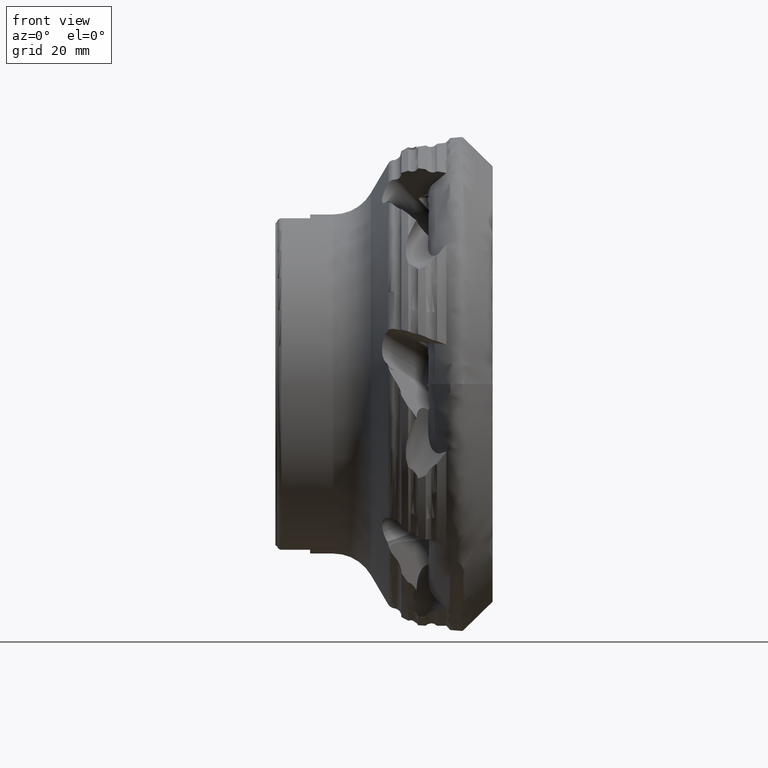
[diagram: clean part render]
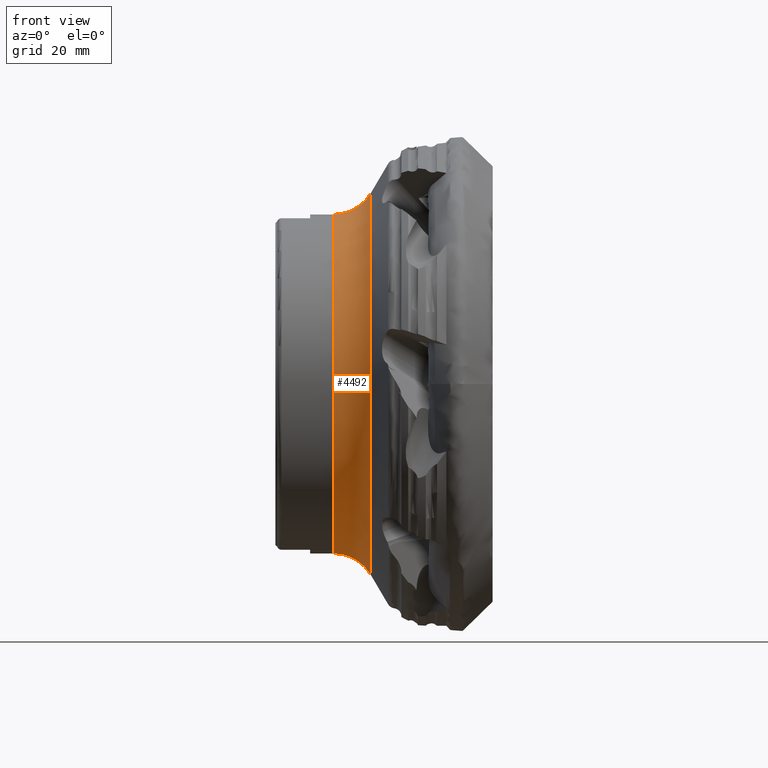
[diagram: same view with one face highlighted and labeled with its STEP entity id]
A machine part, front view. The second image highlights one B-rep face of the part: STEP entity #4492.
In plain terms, the highlighted toroidal blend (fillet) surface has major radius 49 mm and minor (blend) radius 10 mm.
Its self-contained STEP definition (entity closure, byte-faithful):
#876 = EDGE_LOOP ( 'NONE', ( #2000, #1999, #1998, #2001 ) ) ;
#1998 = ORIENTED_EDGE ( 'NONE', *, *, #5711, .T. ) ;
#1999 = ORIENTED_EDGE ( 'NONE', *, *, #5700, .T. ) ;
#2000 = ORIENTED_EDGE ( 'NONE', *, *, #5683, .F. ) ;
#2001 = ORIENTED_EDGE ( 'NONE', *, *, #5713, .F. ) ;
#4492 = ADVANCED_FACE ( 'NONE', ( #5412 ), #5410, .F. ) ;
#5410 = TOROIDAL_SURFACE ( 'NONE', #7768, 49.00000000000000000, 10.00000000000000500 ) ;
#5412 = FACE_OUTER_BOUND ( 'NONE', #876, .T. ) ;
#5560 = CIRCLE ( 'NONE', #7854, 43.92229059280778400 ) ;
#5576 = CIRCLE ( 'NONE', #7858, 10.00000000000000900 ) ;
#5579 = CIRCLE ( 'NONE', #7861, 38.99999999999999300 ) ;
#5582 = CIRCLE ( 'NONE', #7862, 10.00000000000000900 ) ;
#5683 = EDGE_CURVE ( 'NONE', #5971, #5832, #5560, .T. ) ;
#5700 = EDGE_CURVE ( 'NONE', #5971, #6066, #5576, .T. ) ;
#5711 = EDGE_CURVE ( 'NONE', #6066, #5789, #5579, .T. ) ;
#5713 = EDGE_CURVE ( 'NONE', #5832, #5789, #5582, .T. ) ;
#5789 = VERTEX_POINT ( 'NONE', #13989 ) ;
#5832 = VERTEX_POINT ( 'NONE', #14027 ) ;
#5971 = VERTEX_POINT ( 'NONE', #14132 ) ;
#6066 = VERTEX_POINT ( 'NONE', #14212 ) ;
#7768 = AXIS2_PLACEMENT_3D ( 'NONE', #11914, #11911, #11916 ) ;
#7854 = AXIS2_PLACEMENT_3D ( 'NONE', #13266, #13267, #13268 ) ;
#7858 = AXIS2_PLACEMENT_3D ( 'NONE', #13347, #13348, #13349 ) ;
#7861 = AXIS2_PLACEMENT_3D ( 'NONE', #13436, #13437, #13438 ) ;
#7862 = AXIS2_PLACEMENT_3D ( 'NONE', #13448, #13449, #13450 ) ;
#11911 = DIRECTION ( 'NONE',  ( 1.000000000000000000, -0.0000000000000000000, -0.0000000000000000000 ) ) ;
#11914 = CARTESIAN_POINT ( 'NONE',  ( -35.59236524377188000, 0.0000000000000000000, 0.0000000000000000000 ) ) ;
#11916 = DIRECTION ( 'NONE',  ( 0.0000000000000000000, 0.0000000000000000000, -1.000000000000000000 ) ) ;
#13266 = CARTESIAN_POINT ( 'NONE',  ( -26.97744404992966200, 0.0000000000000000000, 0.0000000000000000000 ) ) ;
#13267 = DIRECTION ( 'NONE',  ( 1.000000000000000000, -0.0000000000000000000, -0.0000000000000000000 ) ) ;
#13268 = DIRECTION ( 'NONE',  ( 0.0000000000000000000, 0.0000000000000000000, -1.000000000000000000 ) ) ;
#13347 = CARTESIAN_POINT ( 'NONE',  ( -35.59236524377188000, 6.000769315822030900E-015, 49.00000000000000000 ) ) ;
#13348 = DIRECTION ( 'NONE',  ( 0.0000000000000000000, 1.000000000000000000, -1.224646799147353200E-016 ) ) ;
#13349 = DIRECTION ( 'NONE',  ( 0.0000000000000000000, 1.224646799147352500E-016, 1.000000000000000000 ) ) ;
#13436 = CARTESIAN_POINT ( 'NONE',  ( -35.59236524377186600, 0.0000000000000000000, 0.0000000000000000000 ) ) ;
#13437 = DIRECTION ( 'NONE',  ( 1.000000000000000000, -0.0000000000000000000, -0.0000000000000000000 ) ) ;
#13438 = DIRECTION ( 'NONE',  ( 0.0000000000000000000, 0.0000000000000000000, -1.000000000000000000 ) ) ;
#13448 = CARTESIAN_POINT ( 'NONE',  ( -35.59236524377188000, 0.0000000000000000000, -49.00000000000000000 ) ) ;
#13449 = DIRECTION ( 'NONE',  ( -0.0000000000000000000, -1.000000000000000000, -0.0000000000000000000 ) ) ;
#13450 = DIRECTION ( 'NONE',  ( 0.0000000000000000000, 0.0000000000000000000, -1.000000000000000000 ) ) ;
#13989 = CARTESIAN_POINT ( 'NONE',  ( -35.59236524377186600, 0.0000000000000000000, -38.99999999999999300 ) ) ;
#14027 = CARTESIAN_POINT ( 'NONE',  ( -26.97744404992966200, 0.0000000000000000000, -43.92229059280778400 ) ) ;
#14132 = CARTESIAN_POINT ( 'NONE',  ( -26.97744404992966200, 5.791467322115395900E-015, 43.92229059280778400 ) ) ;
#14212 = CARTESIAN_POINT ( 'NONE',  ( -35.59236524377186600, 4.776122516674677100E-015, 38.99999999999999300 ) ) ;